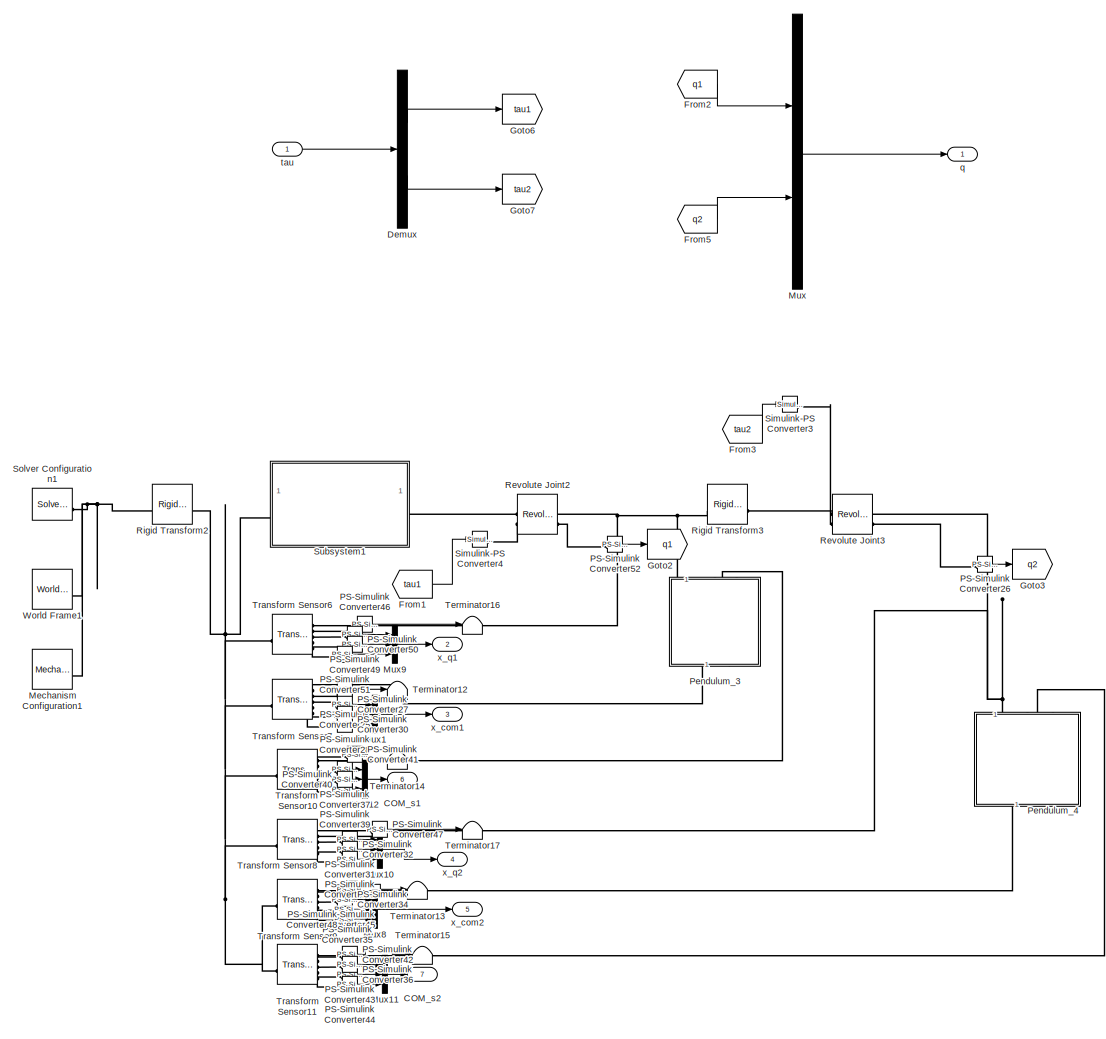
[diagram: root canvas - part 1/1, most of the canvas]
MODEL slx_4daafa620a14
KIND model
CONFIG AbsTol = auto
CONFIG EnableMultiTasking = off
CONFIG FixedStep = auto
CONFIG MaxStep = auto
CONFIG MinStep = auto
CONFIG RelTol = 1e-3
CONFIG SampleTimeConstraint = Unconstrained
CONFIG SolverName = VariableStepAuto
CONFIG StartTime = 0.0
CONFIG StopTime = 10.0
BLOCK [Outport] COM_s1
  Port = 6
BLOCK [Outport] COM_s2
  Port = 7
BLOCK [Demux] Demux
  Outputs = 2
BLOCK [From] From1
  GotoTag = tau1
BLOCK [From] From2
  GotoTag = q1
BLOCK [From] From3
  GotoTag = tau2
BLOCK [From] From5
  GotoTag = q2
BLOCK [Goto] Goto2
  GotoTag = q1
BLOCK [Goto] Goto3
  GotoTag = q2
BLOCK [Goto] Goto6
  GotoTag = tau1
BLOCK [Goto] Goto7
  GotoTag = tau2
BLOCK [Reference] Mechanism Configuration1  REF=sm_lib/Utilities/Mechanism
Configuration
  SourceBlock = sm_lib/Utilities/Mechanism\nConfiguration
  SourceType = Mechanism\nConfiguration
BLOCK [Mux] Mux
  DisplayOption = bar
  Inputs = 2
BLOCK [Mux] Mux1
  DisplayOption = bar
  Inputs = 3
BLOCK [Mux] Mux10
  DisplayOption = bar
  Inputs = 3
BLOCK [Mux] Mux11
  DisplayOption = bar
  Inputs = 3
BLOCK [Mux] Mux12
  DisplayOption = bar
  Inputs = 3
BLOCK [Mux] Mux8
  DisplayOption = bar
  Inputs = 3
BLOCK [Mux] Mux9
  DisplayOption = bar
  Inputs = 3
BLOCK [Reference] PS-Simulink Converter25  REF=nesl_utility/PS-Simulink
Converter
  SourceBlock = nesl_utility/PS-Simulink\nConverter
  SourceType = PS-Simulink\nConverter
BLOCK [Reference] PS-Simulink Converter26  REF=nesl_utility/PS-Simulink
Converter
  SourceBlock = nesl_utility/PS-Simulink\nConverter
  SourceType = PS-Simulink\nConverter
BLOCK [Reference] PS-Simulink Converter27  REF=nesl_utility/PS-Simulink
Converter
  SourceBlock = nesl_utility/PS-Simulink\nConverter
  SourceType = PS-Simulink\nConverter
BLOCK [Reference] PS-Simulink Converter28  REF=nesl_utility/PS-Simulink
Converter
  SourceBlock = nesl_utility/PS-Simulink\nConverter
  SourceType = PS-Simulink\nConverter
BLOCK [Reference] PS-Simulink Converter30  REF=nesl_utility/PS-Simulink
Converter
  SourceBlock = nesl_utility/PS-Simulink\nConverter
  SourceType = PS-Simulink\nConverter
BLOCK [Reference] PS-Simulink Converter31  REF=nesl_utility/PS-Simulink
Converter
  SourceBlock = nesl_utility/PS-Simulink\nConverter
  SourceType = PS-Simulink\nConverter
BLOCK [Reference] PS-Simulink Converter32  REF=nesl_utility/PS-Simulink
Converter
  SourceBlock = nesl_utility/PS-Simulink\nConverter
  SourceType = PS-Simulink\nConverter
BLOCK [Reference] PS-Simulink Converter33  REF=nesl_utility/PS-Simulink
Converter
  SourceBlock = nesl_utility/PS-Simulink\nConverter
  SourceType = PS-Simulink\nConverter
BLOCK [Reference] PS-Simulink Converter34  REF=nesl_utility/PS-Simulink
Converter
  SourceBlock = nesl_utility/PS-Simulink\nConverter
  SourceType = PS-Simulink\nConverter
BLOCK [Reference] PS-Simulink Converter35  REF=nesl_utility/PS-Simulink
Converter
  SourceBlock = nesl_utility/PS-Simulink\nConverter
  SourceType = PS-Simulink\nConverter
BLOCK [Reference] PS-Simulink Converter36  REF=nesl_utility/PS-Simulink
Converter
  SourceBlock = nesl_utility/PS-Simulink\nConverter
  SourceType = PS-Simulink\nConverter
BLOCK [Reference] PS-Simulink Converter37  REF=nesl_utility/PS-Simulink
Converter
  SourceBlock = nesl_utility/PS-Simulink\nConverter
  SourceType = PS-Simulink\nConverter
BLOCK [Reference] PS-Simulink Converter39  REF=nesl_utility/PS-Simulink
Converter
  SourceBlock = nesl_utility/PS-Simulink\nConverter
  SourceType = PS-Simulink\nConverter
BLOCK [Reference] PS-Simulink Converter40  REF=nesl_utility/PS-Simulink
Converter
  SourceBlock = nesl_utility/PS-Simulink\nConverter
  SourceType = PS-Simulink\nConverter
BLOCK [Reference] PS-Simulink Converter41  REF=nesl_utility/PS-Simulink
Converter
  SourceBlock = nesl_utility/PS-Simulink\nConverter
  SourceType = PS-Simulink\nConverter
BLOCK [Reference] PS-Simulink Converter42  REF=nesl_utility/PS-Simulink
Converter
  SourceBlock = nesl_utility/PS-Simulink\nConverter
  SourceType = PS-Simulink\nConverter
BLOCK [Reference] PS-Simulink Converter43  REF=nesl_utility/PS-Simulink
Converter
  SourceBlock = nesl_utility/PS-Simulink\nConverter
  SourceType = PS-Simulink\nConverter
BLOCK [Reference] PS-Simulink Converter44  REF=nesl_utility/PS-Simulink
Converter
  SourceBlock = nesl_utility/PS-Simulink\nConverter
  SourceType = PS-Simulink\nConverter
BLOCK [Reference] PS-Simulink Converter45  REF=nesl_utility/PS-Simulink
Converter
  SourceBlock = nesl_utility/PS-Simulink\nConverter
  SourceType = PS-Simulink\nConverter
BLOCK [Reference] PS-Simulink Converter46  REF=nesl_utility/PS-Simulink
Converter
  SourceBlock = nesl_utility/PS-Simulink\nConverter
  SourceType = PS-Simulink\nConverter
BLOCK [Reference] PS-Simulink Converter47  REF=nesl_utility/PS-Simulink
Converter
  SourceBlock = nesl_utility/PS-Simulink\nConverter
  SourceType = PS-Simulink\nConverter
BLOCK [Reference] PS-Simulink Converter48  REF=nesl_utility/PS-Simulink
Converter
  SourceBlock = nesl_utility/PS-Simulink\nConverter
  SourceType = PS-Simulink\nConverter
BLOCK [Reference] PS-Simulink Converter49  REF=nesl_utility/PS-Simulink
Converter
  SourceBlock = nesl_utility/PS-Simulink\nConverter
  SourceType = PS-Simulink\nConverter
BLOCK [Reference] PS-Simulink Converter50  REF=nesl_utility/PS-Simulink
Converter
  SourceBlock = nesl_utility/PS-Simulink\nConverter
  SourceType = PS-Simulink\nConverter
BLOCK [Reference] PS-Simulink Converter51  REF=nesl_utility/PS-Simulink
Converter
  SourceBlock = nesl_utility/PS-Simulink\nConverter
  SourceType = PS-Simulink\nConverter
BLOCK [Reference] PS-Simulink Converter52  REF=nesl_utility/PS-Simulink
Converter
  SourceBlock = nesl_utility/PS-Simulink\nConverter
  SourceType = PS-Simulink\nConverter
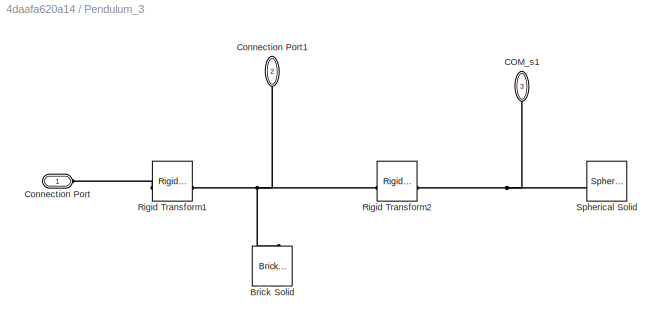
BLOCK [SubSystem] Pendulum_3
  NameLocation = left
BLOCK [Reference] Pendulum_3/Brick Solid  REF=sm_lib/Body Elements/Brick Solid
  NameLocation = right
  SourceBlock = sm_lib/Body Elements/Brick Solid
  SourceType = Brick Solid
BLOCK [PMIOPort] Pendulum_3/COM_s1
  NameLocation = left
  Port = 3
  Side = Left
BLOCK [PMIOPort] Pendulum_3/Connection Port
  Side = Left
BLOCK [PMIOPort] Pendulum_3/Connection Port1
  NameLocation = left
  Port = 2
  Side = Right
BLOCK [Reference] Pendulum_3/Rigid Transform1  REF=sm_lib/Frames and
Transforms/Rigid
Transform
  SourceBlock = sm_lib/Frames and\nTransforms/Rigid\nTransform
  SourceType = Rigid\nTransform
BLOCK [Reference] Pendulum_3/Rigid Transform2  REF=sm_lib/Frames and
Transforms/Rigid
Transform
  SourceBlock = sm_lib/Frames and\nTransforms/Rigid\nTransform
  SourceType = Rigid\nTransform
BLOCK [Reference] Pendulum_3/Spherical Solid  REF=sm_lib/Body Elements/Spherical Solid
  SourceBlock = sm_lib/Body Elements/Spherical Solid
  SourceType = Spherical Solid
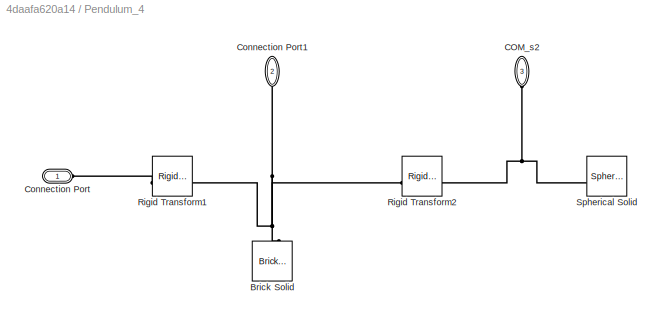
BLOCK [SubSystem] Pendulum_4
  NameLocation = left
BLOCK [Reference] Pendulum_4/Brick Solid  REF=sm_lib/Body Elements/Brick Solid
  NameLocation = right
  SourceBlock = sm_lib/Body Elements/Brick Solid
  SourceType = Brick Solid
BLOCK [PMIOPort] Pendulum_4/COM_s2
  NameLocation = left
  Port = 3
  Side = Left
BLOCK [PMIOPort] Pendulum_4/Connection Port
  Side = Left
BLOCK [PMIOPort] Pendulum_4/Connection Port1
  NameLocation = left
  Port = 2
  Side = Right
BLOCK [Reference] Pendulum_4/Rigid Transform1  REF=sm_lib/Frames and
Transforms/Rigid
Transform
  SourceBlock = sm_lib/Frames and\nTransforms/Rigid\nTransform
  SourceType = Rigid\nTransform
BLOCK [Reference] Pendulum_4/Rigid Transform2  REF=sm_lib/Frames and
Transforms/Rigid
Transform
  SourceBlock = sm_lib/Frames and\nTransforms/Rigid\nTransform
  SourceType = Rigid\nTransform
BLOCK [Reference] Pendulum_4/Spherical Solid  REF=sm_lib/Body Elements/Spherical Solid
  SourceBlock = sm_lib/Body Elements/Spherical Solid
  SourceType = Spherical Solid
BLOCK [Reference] Revolute Joint2  REF=sm_lib/Joints/Revolute Joint
  SourceBlock = sm_lib/Joints/Revolute Joint
  SourceType = Revolute Joint
BLOCK [Reference] Revolute Joint3  REF=sm_lib/Joints/Revolute Joint
  SourceBlock = sm_lib/Joints/Revolute Joint
  SourceType = Revolute Joint
BLOCK [Reference] Rigid Transform2  REF=sm_lib/Frames and
Transforms/Rigid
Transform
  SourceBlock = sm_lib/Frames and\nTransforms/Rigid\nTransform
  SourceType = Rigid\nTransform
BLOCK [Reference] Rigid Transform3  REF=sm_lib/Frames and
Transforms/Rigid
Transform
  SourceBlock = sm_lib/Frames and\nTransforms/Rigid\nTransform
  SourceType = Rigid\nTransform
BLOCK [Reference] Simulink-PS Converter3  REF=nesl_utility/Simulink-PS
Converter
  SourceBlock = nesl_utility/Simulink-PS\nConverter
  SourceType = Simulink-PS\nConverter
BLOCK [Reference] Simulink-PS Converter4  REF=nesl_utility/Simulink-PS
Converter
  NameLocation = left
  SourceBlock = nesl_utility/Simulink-PS\nConverter
  SourceType = Simulink-PS\nConverter
BLOCK [Reference] Solver Configuration1  REF=nesl_utility/Solver
Configuration
  SourceBlock = nesl_utility/Solver\nConfiguration
  SourceType = Solver\nConfiguration
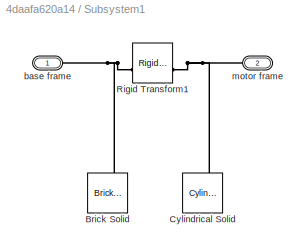
BLOCK [SubSystem] Subsystem1
BLOCK [Reference] Subsystem1/Brick Solid  REF=sm_lib/Body Elements/Brick Solid
  SourceBlock = sm_lib/Body Elements/Brick Solid
  SourceType = Brick Solid
BLOCK [Reference] Subsystem1/Cylindrical Solid  REF=sm_lib/Body Elements/Cylindrical Solid
  NameLocation = right
  SourceBlock = sm_lib/Body Elements/Cylindrical Solid
  SourceType = Cylindrical Solid
BLOCK [Reference] Subsystem1/Rigid Transform1  REF=sm_lib/Frames and
Transforms/Rigid
Transform
  SourceBlock = sm_lib/Frames and\nTransforms/Rigid\nTransform
  SourceType = Rigid\nTransform
BLOCK [PMIOPort] Subsystem1/base frame
  Side = Left
BLOCK [PMIOPort] Subsystem1/motor frame
  Port = 2
  Side = Right
BLOCK [Terminator] Terminator12
BLOCK [Terminator] Terminator13
BLOCK [Terminator] Terminator14
BLOCK [Terminator] Terminator15
BLOCK [Terminator] Terminator16
BLOCK [Terminator] Terminator17
BLOCK [Reference] Transform Sensor10  REF=sm_lib/Frames and
Transforms/Transform
Sensor
  SourceBlock = sm_lib/Frames and\nTransforms/Transform\nSensor
  SourceType = Transform\nSensor
BLOCK [Reference] Transform Sensor11  REF=sm_lib/Frames and
Transforms/Transform
Sensor
  SourceBlock = sm_lib/Frames and\nTransforms/Transform\nSensor
  SourceType = Transform\nSensor
BLOCK [Reference] Transform Sensor6  REF=sm_lib/Frames and
Transforms/Transform
Sensor
  SourceBlock = sm_lib/Frames and\nTransforms/Transform\nSensor
  SourceType = Transform\nSensor
BLOCK [Reference] Transform Sensor7  REF=sm_lib/Frames and
Transforms/Transform
Sensor
  SourceBlock = sm_lib/Frames and\nTransforms/Transform\nSensor
  SourceType = Transform\nSensor
BLOCK [Reference] Transform Sensor8  REF=sm_lib/Frames and
Transforms/Transform
Sensor
  SourceBlock = sm_lib/Frames and\nTransforms/Transform\nSensor
  SourceType = Transform\nSensor
BLOCK [Reference] Transform Sensor9  REF=sm_lib/Frames and
Transforms/Transform
Sensor
  SourceBlock = sm_lib/Frames and\nTransforms/Transform\nSensor
  SourceType = Transform\nSensor
BLOCK [Reference] World Frame1  REF=sm_lib/Frames and
Transforms/World Frame
  SourceBlock = sm_lib/Frames and\nTransforms/World Frame
  SourceType = World Frame
BLOCK [Outport] q
BLOCK [Inport] tau
BLOCK [Outport] x_com1
  Port = 3
BLOCK [Outport] x_com2
  Port = 5
BLOCK [Outport] x_q1
  Port = 2
BLOCK [Outport] x_q2
  Port = 4
LINE Demux:1 -> Goto6:1
LINE Demux:2 -> Goto7:1
LINE From1:1 -> Simulink-PS Converter4:1
LINE From2:1 -> Mux:1
LINE From3:1 -> Simulink-PS Converter3:1
LINE From5:1 -> Mux:2
LINE Mux10:1 -> x_q2:1
LINE Mux11:1 -> COM_s2:1
LINE Mux12:1 -> COM_s1:1
LINE Mux1:1 -> x_com1:1
LINE Mux8:1 -> x_com2:1
LINE Mux9:1 -> x_q1:1
LINE Mux:1 -> q:1
LINE PS-Simulink Converter25:1 -> Terminator12:1
LINE PS-Simulink Converter26:1 -> Goto3:1
LINE PS-Simulink Converter27:1 -> Mux1:1
LINE PS-Simulink Converter28:1 -> Mux1:2
LINE PS-Simulink Converter30:1 -> Mux1:3
LINE PS-Simulink Converter31:1 -> Mux10:1
LINE PS-Simulink Converter32:1 -> Mux10:2
LINE PS-Simulink Converter33:1 -> Mux10:3
LINE PS-Simulink Converter34:1 -> Mux8:1
LINE PS-Simulink Converter35:1 -> Mux8:2
LINE PS-Simulink Converter36:1 -> Mux11:2
LINE PS-Simulink Converter37:1 -> Mux12:1
LINE PS-Simulink Converter39:1 -> Mux12:3
LINE PS-Simulink Converter40:1 -> Mux12:2
LINE PS-Simulink Converter41:1 -> Terminator14:1
LINE PS-Simulink Converter42:1 -> Terminator15:1
LINE PS-Simulink Converter43:1 -> Mux11:1
LINE PS-Simulink Converter44:1 -> Mux11:3
LINE PS-Simulink Converter45:1 -> Terminator13:1
LINE PS-Simulink Converter46:1 -> Terminator16:1
LINE PS-Simulink Converter47:1 -> Terminator17:1
LINE PS-Simulink Converter48:1 -> Mux8:3
LINE PS-Simulink Converter49:1 -> Mux9:1
LINE PS-Simulink Converter50:1 -> Mux9:2
LINE PS-Simulink Converter51:1 -> Mux9:3
LINE PS-Simulink Converter52:1 -> Goto2:1
LINE tau:1 -> Demux:1
PNET net1: Mechanism Configuration1:RConn1 -- Rigid Transform2:LConn1 -- Solver Configuration1:RConn1 -- World Frame1:RConn1
PLINE PS-Simulink Converter25:LConn1 -- Transform Sensor7:RConn2
PLINE PS-Simulink Converter26:LConn1 -- Revolute Joint3:RConn2
PLINE PS-Simulink Converter27:LConn1 -- Transform Sensor7:RConn3
PLINE PS-Simulink Converter28:LConn1 -- Transform Sensor7:RConn4
PLINE PS-Simulink Converter30:LConn1 -- Transform Sensor7:RConn5
PLINE PS-Simulink Converter31:LConn1 -- Transform Sensor8:RConn3
PLINE PS-Simulink Converter32:LConn1 -- Transform Sensor8:RConn4
PLINE PS-Simulink Converter33:LConn1 -- Transform Sensor8:RConn5
PLINE PS-Simulink Converter34:LConn1 -- Transform Sensor9:RConn3
PLINE PS-Simulink Converter35:LConn1 -- Transform Sensor9:RConn4
PLINE PS-Simulink Converter36:LConn1 -- Transform Sensor11:RConn4
PLINE PS-Simulink Converter37:LConn1 -- Transform Sensor10:RConn3
PLINE PS-Simulink Converter39:LConn1 -- Transform Sensor10:RConn5
PLINE PS-Simulink Converter40:LConn1 -- Transform Sensor10:RConn4
PLINE PS-Simulink Converter41:LConn1 -- Transform Sensor10:RConn2
PLINE PS-Simulink Converter42:LConn1 -- Transform Sensor11:RConn2
PLINE PS-Simulink Converter43:LConn1 -- Transform Sensor11:RConn3
PLINE PS-Simulink Converter44:LConn1 -- Transform Sensor11:RConn5
PLINE PS-Simulink Converter45:LConn1 -- Transform Sensor9:RConn2
PLINE PS-Simulink Converter46:LConn1 -- Transform Sensor6:RConn2
PLINE PS-Simulink Converter47:LConn1 -- Transform Sensor8:RConn2
PLINE PS-Simulink Converter48:LConn1 -- Transform Sensor9:RConn5
PLINE PS-Simulink Converter49:LConn1 -- Transform Sensor6:RConn3
PLINE PS-Simulink Converter50:LConn1 -- Transform Sensor6:RConn4
PLINE PS-Simulink Converter51:LConn1 -- Transform Sensor6:RConn5
PLINE PS-Simulink Converter52:LConn1 -- Revolute Joint2:RConn2
PNET net2: Pendulum_3/Brick Solid:RConn1 -- Pendulum_3/Connection Port1:RConn1 -- Pendulum_3/Rigid Transform1:LConn1 -- Pendulum_3/Rigid Transform2:LConn1
PNET net3: Pendulum_3/COM_s1:RConn1 -- Pendulum_3/Rigid Transform2:RConn1 -- Pendulum_3/Spherical Solid:RConn1
PLINE Pendulum_3/Connection Port:RConn1 -- Pendulum_3/Rigid Transform1:RConn1
PNET net4: Pendulum_3:LConn1 -- Revolute Joint2:RConn1 -- Rigid Transform3:LConn1 -- Transform Sensor6:RConn1
PLINE Pendulum_3:LConn2 -- Transform Sensor10:RConn1
PLINE Pendulum_3:RConn1 -- Transform Sensor7:RConn1
PNET net5: Pendulum_4/Brick Solid:RConn1 -- Pendulum_4/Connection Port1:RConn1 -- Pendulum_4/Rigid Transform1:LConn1 -- Pendulum_4/Rigid Transform2:LConn1
PNET net6: Pendulum_4/COM_s2:RConn1 -- Pendulum_4/Rigid Transform2:RConn1 -- Pendulum_4/Spherical Solid:RConn1
PLINE Pendulum_4/Connection Port:RConn1 -- Pendulum_4/Rigid Transform1:RConn1
PNET net7: Pendulum_4:LConn1 -- Revolute Joint3:RConn1 -- Transform Sensor8:RConn1
PLINE Pendulum_4:LConn2 -- Transform Sensor11:RConn1
PLINE Pendulum_4:RConn1 -- Transform Sensor9:RConn1
PLINE Revolute Joint2:LConn1 -- Subsystem1:RConn1
PLINE Revolute Joint2:LConn2 -- Simulink-PS Converter4:RConn1
PLINE Revolute Joint3:LConn1 -- Rigid Transform3:RConn1
PLINE Revolute Joint3:LConn2 -- Simulink-PS Converter3:RConn1
PNET net8: Rigid Transform2:RConn1 -- Subsystem1:LConn1 -- Transform Sensor10:LConn1 -- Transform Sensor11:LConn1 -- Transform Sensor6:LConn1 -- Transform Sensor7:LConn1 -- Transform Sensor8:LConn1 -- Transform Sensor9:LConn1
PNET net9: Subsystem1/Brick Solid:RConn1 -- Subsystem1/Rigid Transform1:LConn1 -- Subsystem1/base frame:RConn1
PNET net10: Subsystem1/Cylindrical Solid:RConn1 -- Subsystem1/Rigid Transform1:RConn1 -- Subsystem1/motor frame:RConn1
note: PNET lines group multi-terminal physical nets as a canonical sorted terminal list (undirected conserving connections); 2-terminal nets keep the pairwise PLINE form
